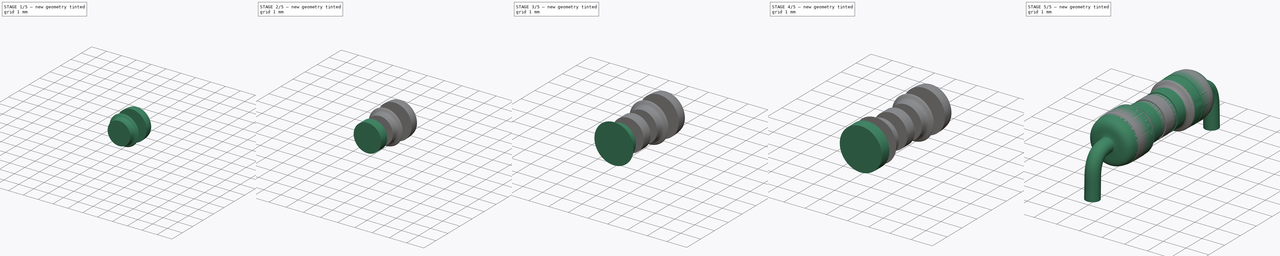
[diagram: build sequence overview — one tinted view per stage of 5, left to right]
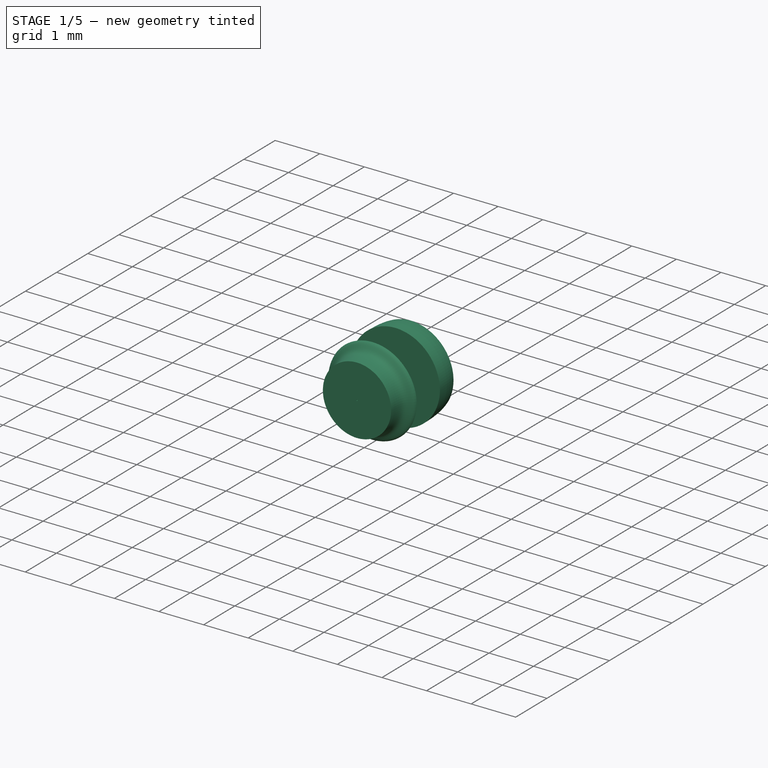
[diagram: stage 1 of 5 — iso view after this stage's code; geometry added in this stage tinted green]
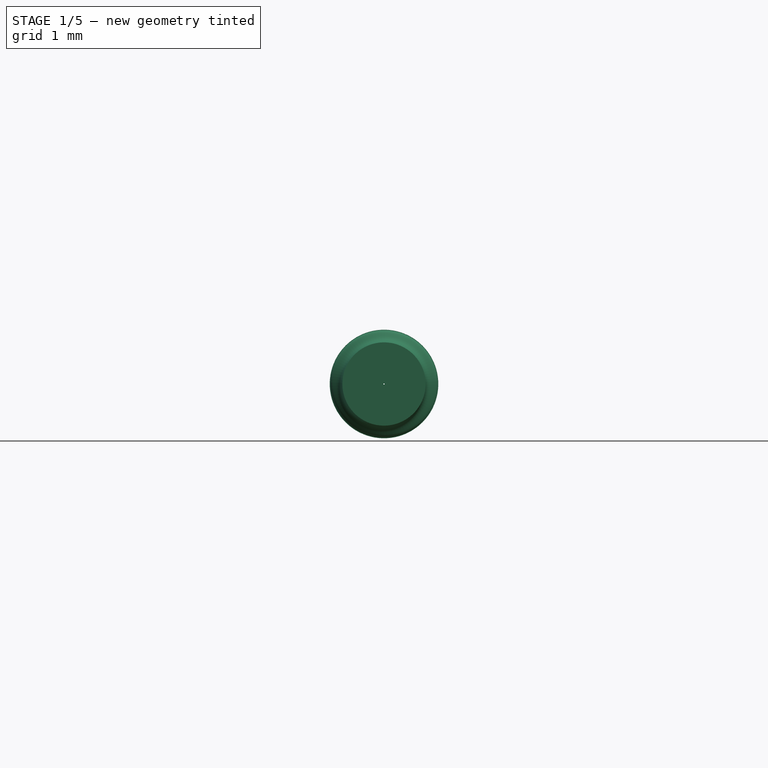
[diagram: stage 1 of 5 — front view after this stage's code; geometry added in this stage tinted green]
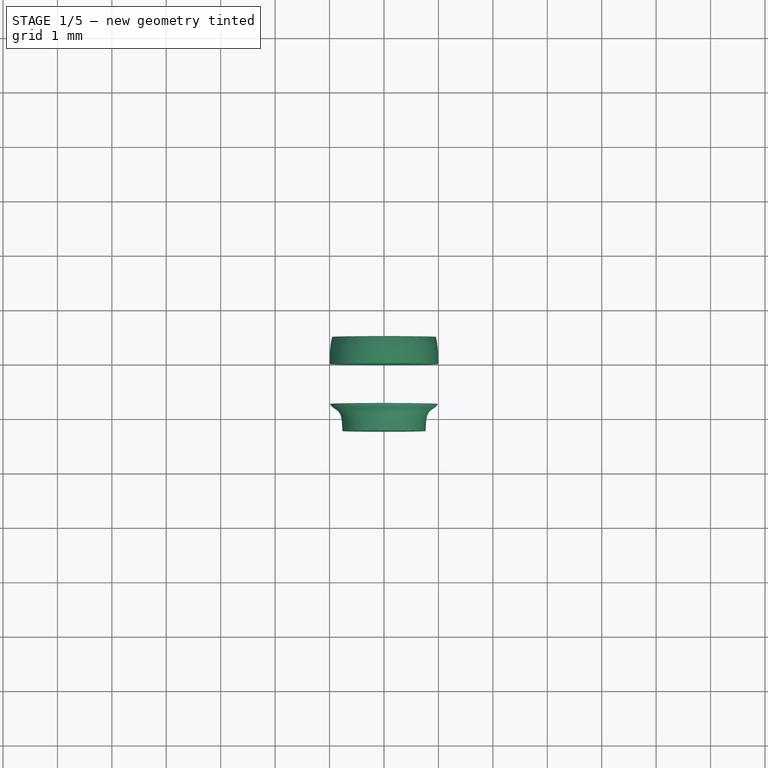
[diagram: stage 1 of 5 — top view after this stage's code; geometry added in this stage tinted green]
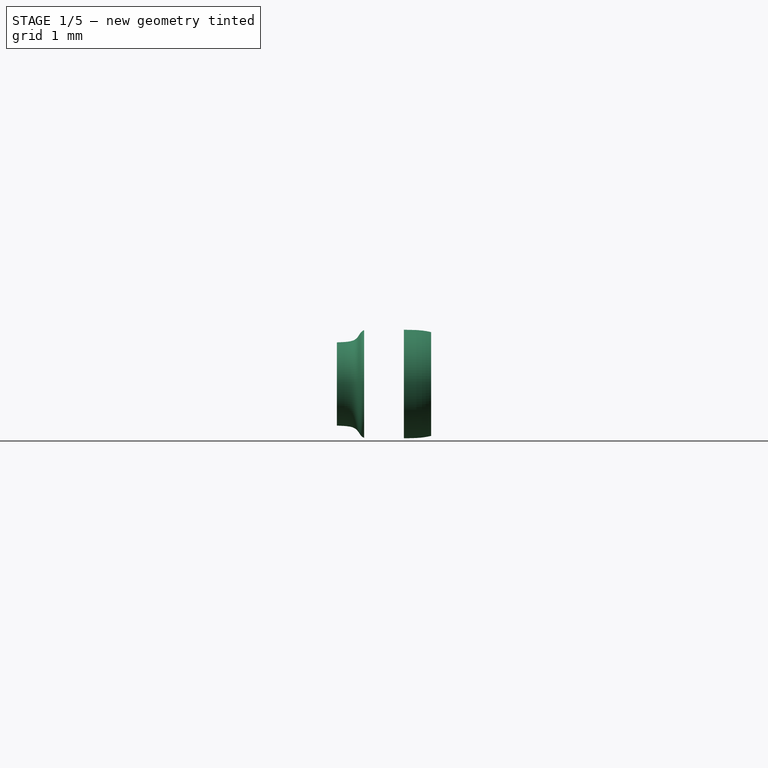
[diagram: stage 1 of 5 — right view after this stage's code; geometry added in this stage tinted green]
FCSTD DOCUMENT  (FreeCAD 0.19R16945 (Git))
Label: Resistors MF ColorCoded
License: All rights reserved
LicenseURL: http://en.wikipedia.org/wiki/All_rights_reserved
objects: PartDesign::Body×49, PartDesign::FeatureBase×37, Sketcher::SketchObject×17, PartDesign::Mirrored×6, PartDesign::Pad×6, PartDesign::Revolution×5, App::DocumentObjectGroup×5, PartDesign::Groove×4, PartDesign::AdditivePipe×1
note: 141 computed .brp shape members not serialized (recipe doc carries the construction recipe); baked Part::Feature solids carry a one-line shape summary decoded from their .brp

FEATURE [PartDesign::Body] Body015  label="2_0"
  Group = -> [Sketch019,Revolution003,Mirrored005,Sketch020,Groove001]
  Origin = -> Origin015
  Tip = -> Groove001
FEATURE [Sketcher::SketchObject] Sketch031
  AttachmentOffset = pos=(0,-0.01,0) rot=(0,0,1;3.14159rad)
  MapMode = 5
  Placement = pos=(0,0,-0.01) rot=(0.57735,-0.57735,0.57735;4.18879rad)
  Support = -> [YZ_Plane024]
  sketch-geometry (31):
    g0: LineSegment StartX=0 StartY=0 StartZ=0 EndX=0 EndY=0.75 EndZ=0
    g1-g11: Circle [constr] x11 (B-spline internal-alignment scaffolding for g12; pole/knot coordinates omitted)
    g12: BSplineCurve PolesCount=11 KnotsCount=9 Degree=3 IsPeriodic=0
    g13-g21: GeomPoint [constr] x9 (B-spline internal-alignment scaffolding for g12; pole/knot coordinates omitted)
    g22: LineSegment [constr] StartX=0 StartY=1 StartZ=0 EndX=-3 EndY=1 EndZ=0
    g23: LineSegment StartX=-2.96618 StartY=0.25 StartZ=0 EndX=-2.96618 EndY=0 EndZ=0
    g24: LineSegment StartX=-2.96618 StartY=0 StartZ=0 EndX=0 EndY=0 EndZ=0
    g25: Circle [constr] CenterX=-0.769069 CenterY=0.754505 CenterZ=0 NormalX=0 NormalY=0 NormalZ=1 AngleXU=0 Radius=0.06
    g26: Circle [constr] CenterX=-0.446942 CenterY=0.755366 CenterZ=0 NormalX=0 NormalY=0 NormalZ=1 AngleXU=0 Radius=0.06
    g27: Circle [constr] CenterX=0 CenterY=0.75 CenterZ=0 NormalX=0 NormalY=0 NormalZ=1 AngleXU=0 Radius=0.06
    g28: BSplineCurve PolesCount=3 KnotsCount=2 Degree=2 IsPeriodic=0
    g29: GeomPoint [constr] X=-0.769069 Y=0.754505 Z=0
    g30: GeomPoint [constr] X=0 Y=0.75 Z=0
  constraints (27):
    c: Coincident(g0,g-1)
    c: PointOnObject(g0,g-2)
    c: Radius(g1) = 0.05
    c: Equal(g1, g2-g11) x10
    c: InternalAlignment(g1-g11 -> g12) x11
    c: InternalAlignment(g13-g21 -> g12) x9
    c: DistanceY(g0,g0) = 0.75
    c: PointOnObject(g22,g-2)
    c: Horizontal(g22)
    c: DistanceY(g0,g22) = 1
    c: DistanceY(g0,g12) = 0.25
    c: DistanceX(g22,g22) = 3
    c: Coincident(g23,g12)
    c: Vertical(g23)
    c: Coincident(g23,g24)
    c: Coincident(g24,g0)
    c: Horizontal(g24)
    c: Coincident(g28,g12)
    c: Radius(g25) = 0.06
    c: Equal(g25,g26)
    c: Equal(g25,g27)
    c: Coincident(g28,g0)
    c: InternalAlignment(g25,g28)
    c: InternalAlignment(g26,g28)
    c: InternalAlignment(g27,g28)
    c: InternalAlignment(g29,g28)
    c: InternalAlignment(g30,g28)
FEATURE [PartDesign::Revolution] Revolution006
  Angle = 360
  Axis = (1e-16,1,-1e-16)
  Base = (0,0,0)
  Placement = pos=(0,0,0) rot=(0.57735,0.57735,0.57735;2.0944rad)
  Profile = -> Sketch031
  ReferenceAxis = -> Y_Axis024
  Refine = true
FEATURE [PartDesign::Mirrored] Mirrored009
  BaseFeature = -> Revolution006
  MirrorPlane = -> Sketch031 [V_Axis]
  Originals = -> [Revolution006]
  Placement = pos=(0,0,0) rot=(0.57735,0.57735,0.57735;2.0944rad)
  Refine = true
FEATURE [Sketcher::SketchObject] Sketch032
  MapMode = 5
  Placement = pos=(0,0,0) rot=(0.57735,0.57735,0.57735;2.0944rad)
  Support = -> [YZ_Plane024]
  sketch-geometry (8):
    g0: LineSegment StartX=1.27 StartY=0 StartZ=0 EndX=7.09893 EndY=0 EndZ=0
    g1: LineSegment StartX=7.09893 StartY=0 StartZ=0 EndX=7.09893 EndY=4.64771 EndZ=0
    g2: LineSegment StartX=7.09893 StartY=4.64771 StartZ=0 EndX=1.27 EndY=4.64771 EndZ=0
    g3: LineSegment StartX=1.27 StartY=4.64771 StartZ=0 EndX=1.27 EndY=0 EndZ=0
    g4: LineSegment StartX=0.77 StartY=0 StartZ=0 EndX=-6.63509 EndY=0 EndZ=0
    g5: LineSegment StartX=-6.63509 StartY=0 StartZ=0 EndX=-6.63509 EndY=4.53032 EndZ=0
    g6: LineSegment StartX=-6.63509 StartY=4.53032 StartZ=0 EndX=0.77 EndY=4.53032 EndZ=0
    g7: LineSegment StartX=0.77 StartY=4.53032 StartZ=0 EndX=0.77 EndY=0 EndZ=0
  constraints (20):
    c: Coincident(g0,g1)
    c: Coincident(g1,g2)
    c: Coincident(g2,g3)
    c: Coincident(g3,g0)
    c: Horizontal(g0)
    c: Horizontal(g2)
    c: Vertical(g1)
    c: Vertical(g3)
    c: PointOnObject(g0,g-1)
    c: Coincident(g4,g5)
    c: Coincident(g5,g6)
    c: Coincident(g6,g7)
    c: Coincident(g7,g4)
    c: Horizontal(g4)
    c: Horizontal(g6)
    c: Vertical(g5)
    c: Vertical(g7)
    c: PointOnObject(g4,g-1)
    c: DistanceX(g6,g2) = 0.5
    c: DistanceX(g-1,g6) = 0.77
FEATURE [PartDesign::Groove] Groove003
  Angle = 360
  Axis = (1e-16,1,-1e-16)
  Base = (0,0,0)
  BaseFeature = -> Mirrored009
  Placement = pos=(0,0,0) rot=(0.57735,0.57735,0.57735;2.0944rad)
  Profile = -> Sketch032
  ReferenceAxis = -> Y_Axis024
  Refine = true
  Reversed = true
FEATURE [PartDesign::Body] Body025  label="3_0"
  Group = -> [Sketch033,Pad005]
  Origin = -> Origin025
  Tip = -> Pad005
FEATURE [Sketcher::SketchObject] Sketch042
  AttachmentOffset = pos=(0,-0.01,0) rot=(0,0,1;3.14159rad)
  MapMode = 5
  Placement = pos=(0,0,-0.01) rot=(0.57735,-0.57735,0.57735;4.18879rad)
  Support = -> [YZ_Plane033]
  sketch-geometry (31):
    g0: LineSegment StartX=0 StartY=0 StartZ=0 EndX=0 EndY=0.75 EndZ=0
    g1-g11: Circle [constr] x11 (B-spline internal-alignment scaffolding for g12; pole/knot coordinates omitted)
    g12: BSplineCurve PolesCount=11 KnotsCount=9 Degree=3 IsPeriodic=0
    g13-g21: GeomPoint [constr] x9 (B-spline internal-alignment scaffolding for g12; pole/knot coordinates omitted)
    g22: LineSegment [constr] StartX=0 StartY=1 StartZ=0 EndX=-3 EndY=1 EndZ=0
    g23: LineSegment StartX=-2.96618 StartY=0.25 StartZ=0 EndX=-2.96618 EndY=0 EndZ=0
    g24: LineSegment StartX=-2.96618 StartY=0 StartZ=0 EndX=0 EndY=0 EndZ=0
    g25: Circle [constr] CenterX=-0.769069 CenterY=0.754505 CenterZ=0 NormalX=0 NormalY=0 NormalZ=1 AngleXU=0 Radius=0.06
    g26: Circle [constr] CenterX=-0.446942 CenterY=0.755366 CenterZ=0 NormalX=0 NormalY=0 NormalZ=1 AngleXU=0 Radius=0.06
    g27: Circle [constr] CenterX=0 CenterY=0.75 CenterZ=0 NormalX=0 NormalY=0 NormalZ=1 AngleXU=0 Radius=0.06
    g28: BSplineCurve PolesCount=3 KnotsCount=2 Degree=2 IsPeriodic=0
    g29: GeomPoint [constr] X=-0.769069 Y=0.754505 Z=0
    g30: GeomPoint [constr] X=0 Y=0.75 Z=0
  constraints (27):
    c: Coincident(g0,g-1)
    c: PointOnObject(g0,g-2)
    c: Radius(g1) = 0.03
    c: Equal(g1, g2-g11) x10
    c: InternalAlignment(g1-g11 -> g12) x11
    c: InternalAlignment(g13-g21 -> g12) x9
    c: DistanceY(g0,g0) = 0.75
    c: PointOnObject(g22,g-2)
    c: Horizontal(g22)
    c: DistanceY(g0,g22) = 1
    c: DistanceY(g0,g12) = 0.25
    c: DistanceX(g22,g22) = 3
    c: Coincident(g23,g12)
    c: Vertical(g23)
    c: Coincident(g23,g24)
    c: Coincident(g24,g0)
    c: Horizontal(g24)
    c: Coincident(g28,g12)
    c: Radius(g25) = 0.06
    c: Equal(g25,g26)
    c: Equal(g25,g27)
    c: Coincident(g28,g0)
    c: InternalAlignment(g25,g28)
    c: InternalAlignment(g26,g28)
    c: InternalAlignment(g27,g28)
    c: InternalAlignment(g29,g28)
    c: InternalAlignment(g30,g28)
FEATURE [PartDesign::Revolution] Revolution008
  Angle = 360
  Axis = (1e-16,1,-1e-16)
  Base = (0,0,0)
  Placement = pos=(0,0,0) rot=(0.57735,0.57735,0.57735;2.0944rad)
  Profile = -> Sketch042
  ReferenceAxis = -> Y_Axis033
  Refine = true
FEATURE [PartDesign::Mirrored] Mirrored012
  BaseFeature = -> Revolution008
  MirrorPlane = -> Sketch042 [V_Axis]
  Originals = -> [Revolution008]
  Placement = pos=(0,0,0) rot=(0.57735,0.57735,0.57735;2.0944rad)
  Refine = true
FEATURE [Sketcher::SketchObject] Sketch043
  MapMode = 5
  Placement = pos=(0,0,0) rot=(0.57735,0.57735,0.57735;2.0944rad)
  Support = -> [YZ_Plane033]
  sketch-geometry (8):
    g0: LineSegment StartX=2.5 StartY=0 StartZ=0 EndX=7.7725 EndY=0 EndZ=0
    g1: LineSegment StartX=7.7725 StartY=0 StartZ=0 EndX=7.7725 EndY=4.54278 EndZ=0
    g2: LineSegment StartX=7.7725 StartY=4.54278 StartZ=0 EndX=2.5 EndY=4.54278 EndZ=0
    g3: LineSegment StartX=2.5 StartY=4.54278 StartZ=0 EndX=2.5 EndY=0 EndZ=0
    g4: LineSegment StartX=2 StartY=0 StartZ=0 EndX=-6.63509 EndY=0 EndZ=0
    g5: LineSegment StartX=-6.63509 StartY=0 StartZ=0 EndX=-6.63509 EndY=4.53032 EndZ=0
    g6: LineSegment StartX=-6.63509 StartY=4.53032 StartZ=0 EndX=2 EndY=4.53032 EndZ=0
    g7: LineSegment StartX=2 StartY=4.53032 StartZ=0 EndX=2 EndY=0 EndZ=0
  constraints (20):
    c: Coincident(g0,g1)
    c: Coincident(g1,g2)
    c: Coincident(g2,g3)
    c: Coincident(g3,g0)
    c: Horizontal(g0)
    c: Horizontal(g2)
    c: Vertical(g1)
    c: Vertical(g3)
    c: PointOnObject(g0,g-1)
    c: Coincident(g4,g5)
    c: Coincident(g5,g6)
    c: Coincident(g6,g7)
    c: Coincident(g7,g4)
    c: Horizontal(g4)
    c: Horizontal(g6)
    c: Vertical(g5)
    c: Vertical(g7)
    c: PointOnObject(g4,g-1)
    c: DistanceX(g6,g2) = 0.5
    c: DistanceX(g-1,g6) = 2
FEATURE [PartDesign::Groove] Groove004
  Angle = 360
  Axis = (1e-16,1,-1e-16)
  Base = (0,0,0)
  BaseFeature = -> Mirrored012
  Placement = pos=(0,0,0) rot=(0.57735,0.57735,0.57735;2.0944rad)
  Profile = -> Sketch043
  ReferenceAxis = -> Y_Axis033
  Reversed = true
FEATURE [PartDesign::Body] Body064  label="4_4"
  Group = -> [Clone030]
  Origin = -> Origin064
  Tip = -> Clone030
FEATURE [PartDesign::FeatureBase] Clone031
  BaseFeature = -> Body024
FEATURE [PartDesign::Body] Body065  label="4_5"
  Group = -> [Clone031]
  Origin = -> Origin065
  Tip = -> Clone031
FEATURE [PartDesign::FeatureBase] Clone032
  BaseFeature = -> Body024
FEATURE [PartDesign::Body] Body066  label="4_6"
  Group = -> [Clone032]
  Origin = -> Origin066
  Tip = -> Clone032
FEATURE [PartDesign::FeatureBase] Clone033
  BaseFeature = -> Body024
FEATURE [PartDesign::Body] Body067  label="4_7"
  Group = -> [Clone033]
  Origin = -> Origin067
  Tip = -> Clone033
FEATURE [PartDesign::FeatureBase] Clone034
  BaseFeature = -> Body024
FEATURE [PartDesign::Body] Body068  label="4_8"
  Group = -> [Clone034]
  Origin = -> Origin068
  Tip = -> Clone034
FEATURE [PartDesign::FeatureBase] Clone035
  BaseFeature = -> Body024
FEATURE [PartDesign::Body] Body069  label="4_9"
  Group = -> [Clone035]
  Origin = -> Origin069
  Tip = -> Clone035
FEATURE [App::DocumentObjectGroup] Group003  label="Bands_4"
  Group = -> [Body024,Body061,Body062,Body063,Body064,Body065,Body066,Body067,Body068,Body069]
FEATURE [PartDesign::FeatureBase] Clone036
  BaseFeature = -> Body033
FEATURE [PartDesign::Body] Body070  label="Band_5_Gold_5%"
  Group = -> [Clone036]
  Origin = -> Origin070
  Tip = -> Clone036
FEATURE [App::DocumentObjectGroup] Group004  label="Bands_5"
  Group = -> [Body033,Body070]
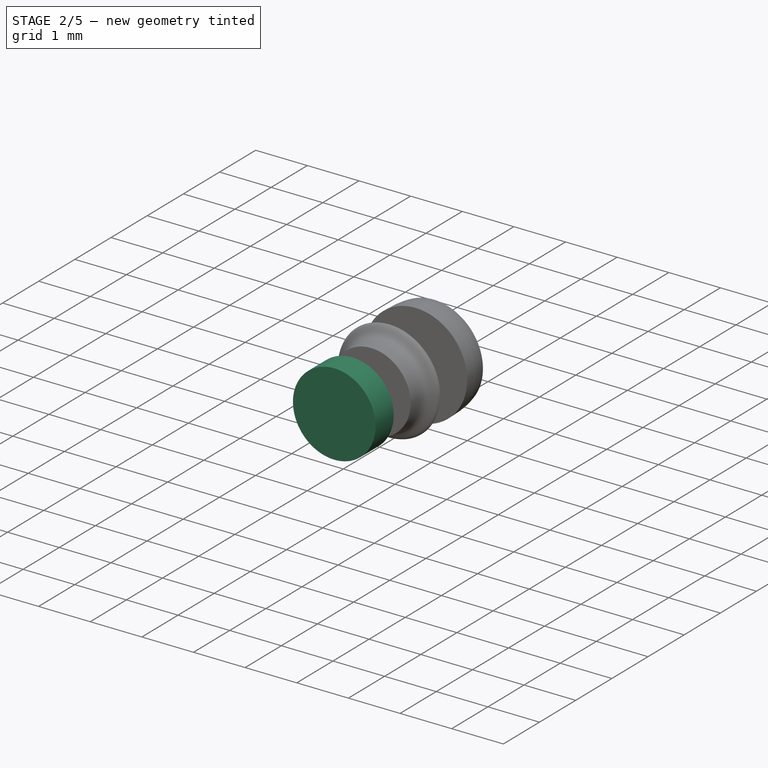
[diagram: stage 2 of 5 — iso view after this stage's code; geometry added in this stage tinted green]
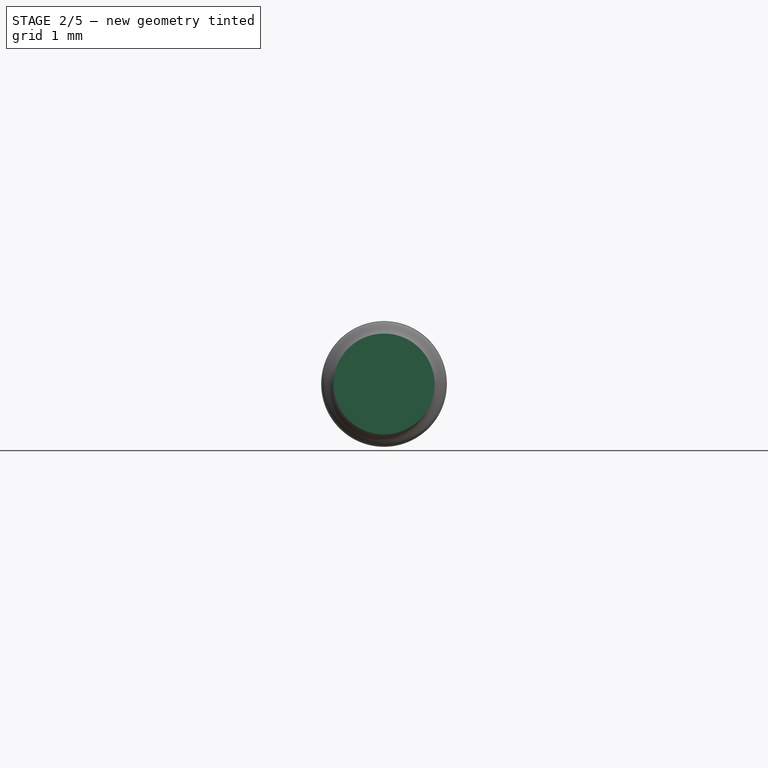
[diagram: stage 2 of 5 — front view after this stage's code; geometry added in this stage tinted green]
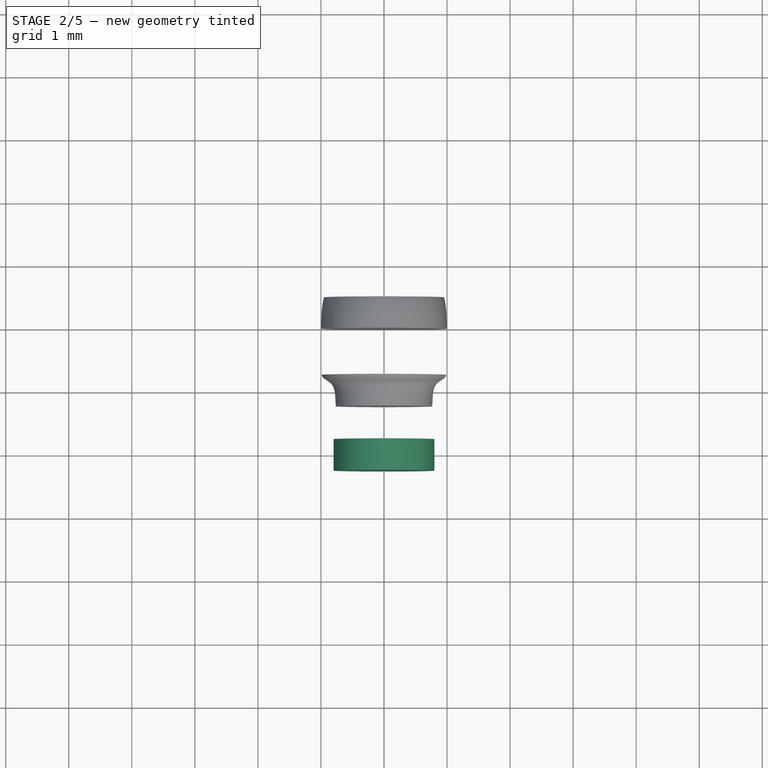
[diagram: stage 2 of 5 — top view after this stage's code; geometry added in this stage tinted green]
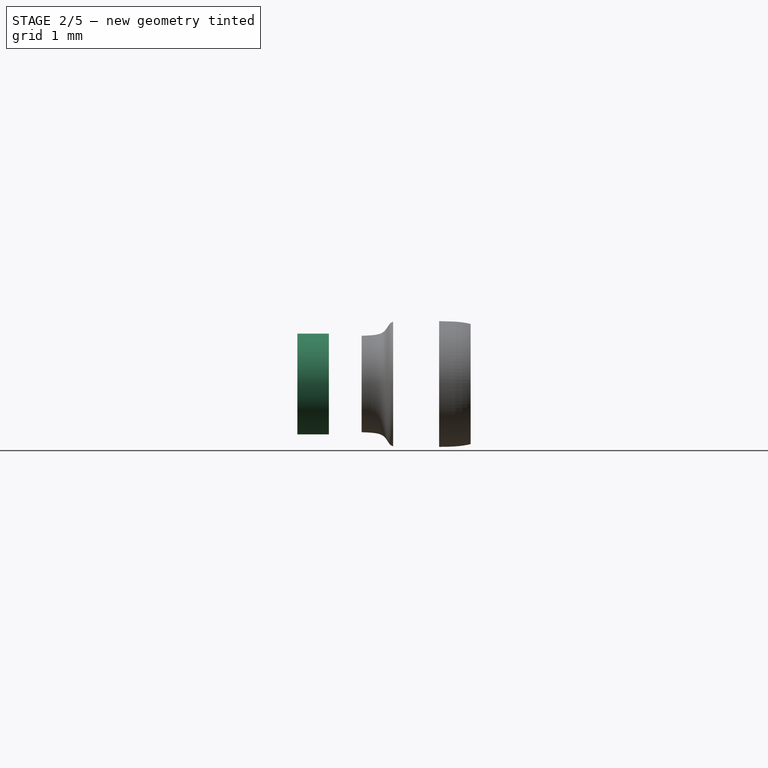
[diagram: stage 2 of 5 — right view after this stage's code; geometry added in this stage tinted green]
FEATURE [PartDesign::Body] Body024  label="4_0"
  Group = -> [Sketch031,Revolution006,Mirrored009,Sketch032,Groove003]
  Origin = -> Origin024
  Tip = -> Groove003
FEATURE [Sketcher::SketchObject] Sketch033
  AttachmentOffset = pos=(0,0,0) rot=(0,0,1;-1.5708rad)
  MapMode = 5
  Placement = pos=(0,0,0) rot=(-0.57735,-0.57735,0.57735;4.18879rad)
  Support = -> [XZ_Plane025]
  sketch-geometry (1):
    g0: Circle CenterX=0 CenterY=0 CenterZ=0 NormalX=0 NormalY=0 NormalZ=1 AngleXU=0 Radius=0.8
  constraints (2):
    c: Coincident(g0,g-1)
    c: Radius(g0) = 0.8
FEATURE [PartDesign::Pad] Pad005
  Length = 0.5
  Length2 = 100
  Midplane = true
  Placement = pos=(0,0,0) rot=(1,0,0;1.5708rad)
  Profile = -> Sketch033
  Type = 0
FEATURE [PartDesign::Body] Body053  label="3_2"
  Group = -> [Clone019]
  Origin = -> Origin053
  Tip = -> Clone019
FEATURE [PartDesign::FeatureBase] Clone020
  BaseFeature = -> Body025
FEATURE [PartDesign::Body] Body054  label="3_3"
  Group = -> [Clone020]
  Origin = -> Origin054
  Tip = -> Clone020
FEATURE [PartDesign::FeatureBase] Clone021
  BaseFeature = -> Body025
FEATURE [PartDesign::Body] Body055  label="3_4"
  Group = -> [Clone021]
  Origin = -> Origin055
  Tip = -> Clone021
FEATURE [PartDesign::FeatureBase] Clone022
  BaseFeature = -> Body025
FEATURE [PartDesign::Body] Body056  label="3_5"
  Group = -> [Clone022]
  Origin = -> Origin056
  Tip = -> Clone022
FEATURE [PartDesign::FeatureBase] Clone023
  BaseFeature = -> Body025
FEATURE [PartDesign::Body] Body057  label="3_6"
  Group = -> [Clone023]
  Origin = -> Origin057
  Tip = -> Clone023
FEATURE [PartDesign::FeatureBase] Clone024
  BaseFeature = -> Body025
FEATURE [PartDesign::Body] Body058  label="3_7"
  Group = -> [Clone024]
  Origin = -> Origin058
  Tip = -> Clone024
FEATURE [PartDesign::FeatureBase] Clone025
  BaseFeature = -> Body025
FEATURE [PartDesign::Body] Body059  label="3_8"
  Group = -> [Clone025]
  Origin = -> Origin059
  Tip = -> Clone025
FEATURE [PartDesign::FeatureBase] Clone026
  BaseFeature = -> Body025
FEATURE [PartDesign::Body] Body060  label="3_9"
  Group = -> [Clone026]
  Origin = -> Origin060
  Tip = -> Clone026
FEATURE [App::DocumentObjectGroup] Group002  label="Bands_3"
  Group = -> [Body025,Body052,Body053,Body054,Body055,Body056,Body057,Body058,Body059,Body060]
FEATURE [PartDesign::FeatureBase] Clone027
  BaseFeature = -> Body024
FEATURE [PartDesign::Body] Body061  label="4_1"
  Group = -> [Clone027]
  Origin = -> Origin061
  Tip = -> Clone027
FEATURE [PartDesign::FeatureBase] Clone028
  BaseFeature = -> Body024
FEATURE [PartDesign::Body] Body062  label="4_2"
  Group = -> [Clone028]
  Origin = -> Origin062
  Tip = -> Clone028
FEATURE [PartDesign::FeatureBase] Clone029
  BaseFeature = -> Body024
FEATURE [PartDesign::Body] Body063  label="4_3"
  Group = -> [Clone029]
  Origin = -> Origin063
  Tip = -> Clone029
FEATURE [PartDesign::FeatureBase] Clone030
  BaseFeature = -> Body024
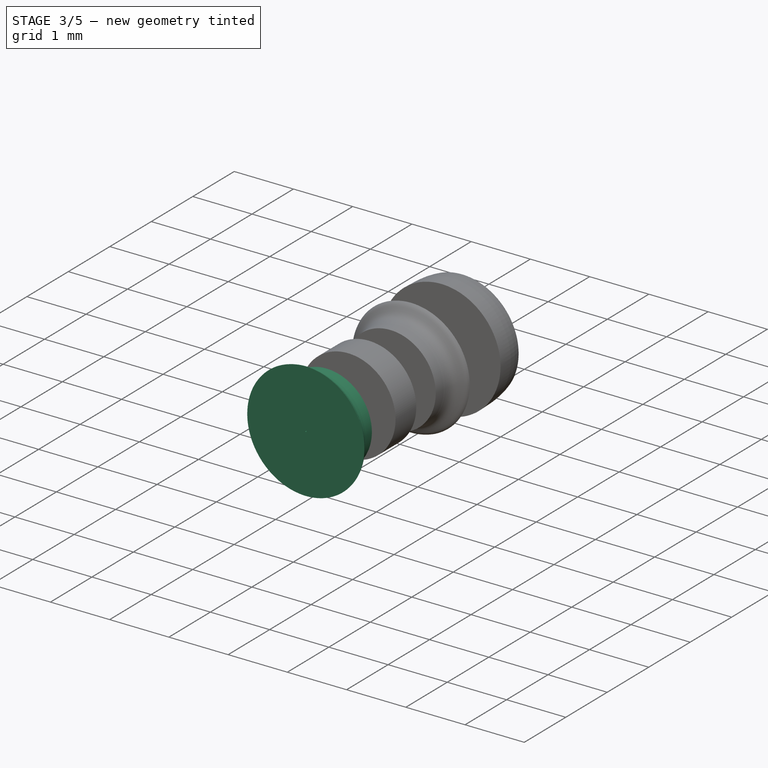
[diagram: stage 3 of 5 — iso view after this stage's code; geometry added in this stage tinted green]
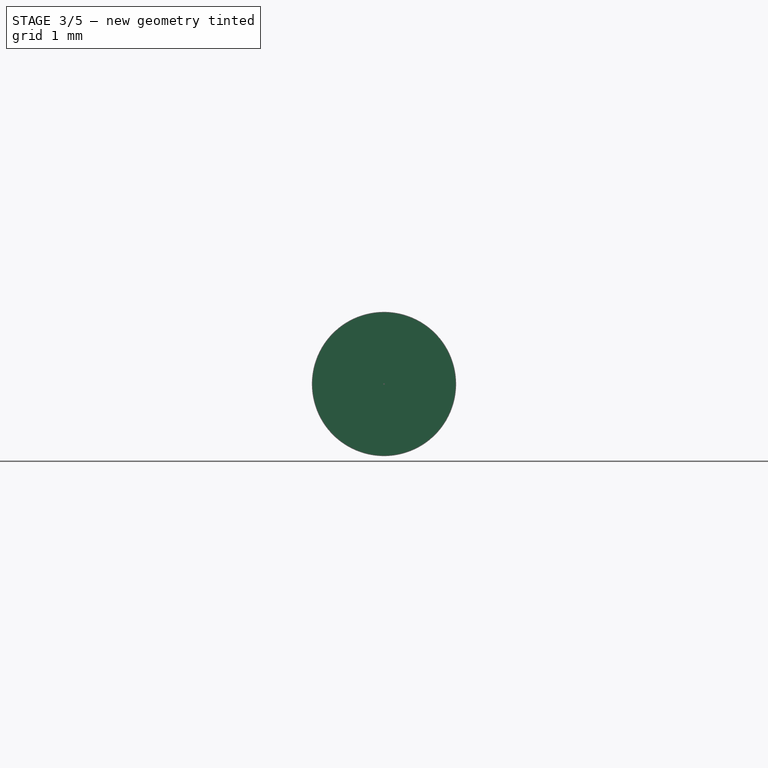
[diagram: stage 3 of 5 — front view after this stage's code; geometry added in this stage tinted green]
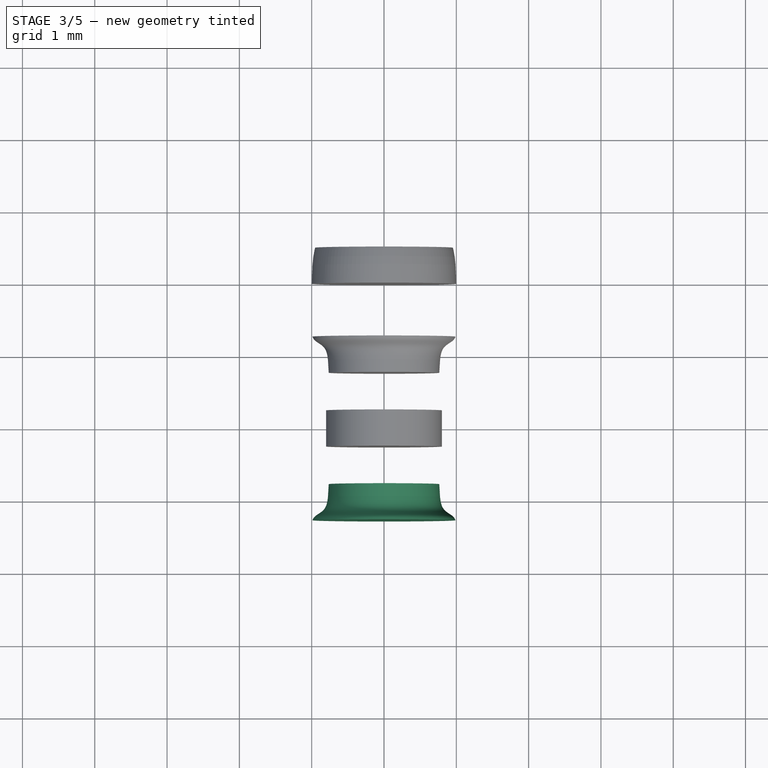
[diagram: stage 3 of 5 — top view after this stage's code; geometry added in this stage tinted green]
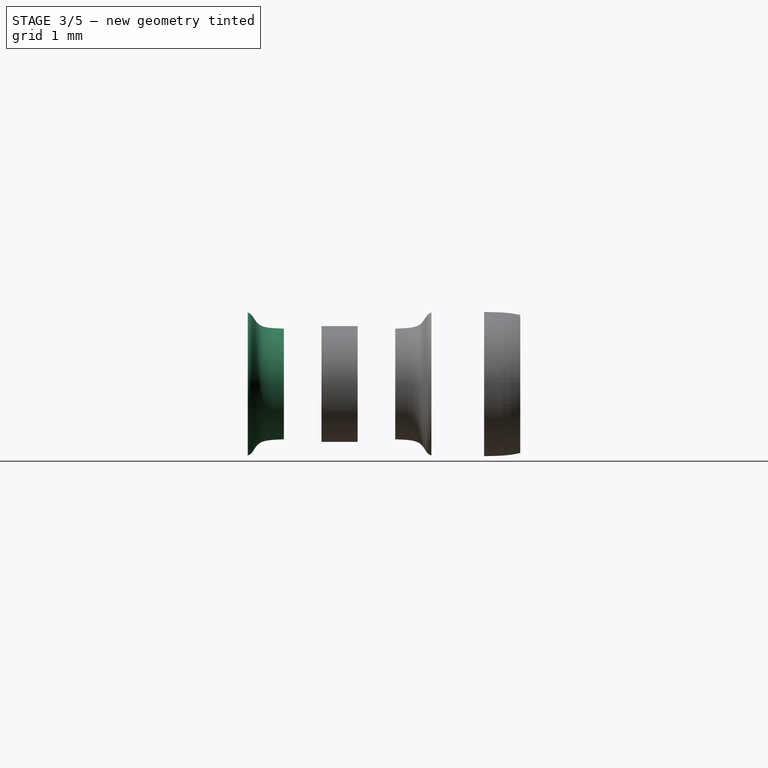
[diagram: stage 3 of 5 — right view after this stage's code; geometry added in this stage tinted green]
FEATURE [PartDesign::Body] Body007  label="1_0"
  Group = -> [Sketch009,Revolution001,Mirrored002,Sketch010,Groove]
  Origin = -> Origin007
  Tip = -> Groove
FEATURE [Sketcher::SketchObject] Sketch019
  AttachmentOffset = pos=(0,-0.01,0) rot=(0,0,1;3.14159rad)
  MapMode = 5
  Placement = pos=(0,0,-0.01) rot=(0.57735,-0.57735,0.57735;4.18879rad)
  Support = -> [YZ_Plane015]
  sketch-geometry (31):
    g0: LineSegment StartX=0 StartY=0 StartZ=0 EndX=0 EndY=0.75 EndZ=0
    g1-g11: Circle [constr] x11 (B-spline internal-alignment scaffolding for g12; pole/knot coordinates omitted)
    g12: BSplineCurve PolesCount=11 KnotsCount=9 Degree=3 IsPeriodic=0
    g13-g21: GeomPoint [constr] x9 (B-spline internal-alignment scaffolding for g12; pole/knot coordinates omitted)
    g22: LineSegment [constr] StartX=0 StartY=1 StartZ=0 EndX=-3 EndY=1 EndZ=0
    g23: LineSegment StartX=-2.96618 StartY=0.25 StartZ=0 EndX=-2.96618 EndY=0 EndZ=0
    g24: LineSegment StartX=-2.96618 StartY=0 StartZ=0 EndX=0 EndY=0 EndZ=0
    g25: Circle [constr] CenterX=-0.769069 CenterY=0.754505 CenterZ=0 NormalX=0 NormalY=0 NormalZ=1 AngleXU=0 Radius=0.06
    g26: Circle [constr] CenterX=-0.446942 CenterY=0.755366 CenterZ=0 NormalX=0 NormalY=0 NormalZ=1 AngleXU=0 Radius=0.06
    g27: Circle [constr] CenterX=0 CenterY=0.75 CenterZ=0 NormalX=0 NormalY=0 NormalZ=1 AngleXU=0 Radius=0.06
    g28: BSplineCurve PolesCount=3 KnotsCount=2 Degree=2 IsPeriodic=0
    g29: GeomPoint [constr] X=-0.769069 Y=0.754505 Z=0
    g30: GeomPoint [constr] X=0 Y=0.75 Z=0
  constraints (27):
    c: Coincident(g0,g-1)
    c: PointOnObject(g0,g-2)
    c: Radius(g1) = 0.05
    c: Equal(g1, g2-g11) x10
    c: InternalAlignment(g1-g11 -> g12) x11
    c: InternalAlignment(g13-g21 -> g12) x9
    c: DistanceY(g0,g0) = 0.75
    c: PointOnObject(g22,g-2)
    c: Horizontal(g22)
    c: DistanceY(g0,g22) = 1
    c: DistanceY(g0,g12) = 0.25
    c: DistanceX(g22,g22) = 3
    c: Coincident(g23,g12)
    c: Vertical(g23)
    c: Coincident(g23,g24)
    c: Coincident(g24,g0)
    c: Horizontal(g24)
    c: Coincident(g28,g12)
    c: Radius(g25) = 0.06
    c: Equal(g25,g26)
    c: Equal(g25,g27)
    c: Coincident(g28,g0)
    c: InternalAlignment(g25,g28)
    c: InternalAlignment(g26,g28)
    c: InternalAlignment(g27,g28)
    c: InternalAlignment(g29,g28)
    c: InternalAlignment(g30,g28)
FEATURE [PartDesign::Revolution] Revolution003
  Angle = 360
  Axis = (1e-16,1,-1e-16)
  Base = (0,0,0)
  Placement = pos=(0,0,0) rot=(0.57735,0.57735,0.57735;2.0944rad)
  Profile = -> Sketch019
  ReferenceAxis = -> Y_Axis015
  Refine = true
FEATURE [PartDesign::Mirrored] Mirrored005
  BaseFeature = -> Revolution003
  MirrorPlane = -> Sketch019 [V_Axis]
  Originals = -> [Revolution003]
  Placement = pos=(0,0,0) rot=(0.57735,0.57735,0.57735;2.0944rad)
  Refine = true
FEATURE [Sketcher::SketchObject] Sketch020
  MapMode = 5
  Placement = pos=(0,0,0) rot=(0.57735,0.57735,0.57735;2.0944rad)
  Support = -> [YZ_Plane015]
  sketch-geometry (8):
    g0: LineSegment StartX=-0.77 StartY=0 StartZ=0 EndX=4.82166 EndY=0 EndZ=0
    g1: LineSegment StartX=4.82166 StartY=0 StartZ=0 EndX=4.82166 EndY=4.48337 EndZ=0
    g2: LineSegment StartX=4.82166 StartY=4.48337 StartZ=0 EndX=-0.77 EndY=4.48337 EndZ=0
    g3: LineSegment StartX=-0.77 StartY=4.48337 StartZ=0 EndX=-0.77 EndY=0 EndZ=0
    g4: LineSegment StartX=-1.27 StartY=0 StartZ=0 EndX=-6.63509 EndY=0 EndZ=0
    g5: LineSegment StartX=-6.63509 StartY=0 StartZ=0 EndX=-6.63509 EndY=4.53032 EndZ=0
    g6: LineSegment StartX=-6.63509 StartY=4.53032 StartZ=0 EndX=-1.27 EndY=4.53032 EndZ=0
    g7: LineSegment StartX=-1.27 StartY=4.53032 StartZ=0 EndX=-1.27 EndY=0 EndZ=0
  constraints (20):
    c: Coincident(g0,g1)
    c: Coincident(g1,g2)
    c: Coincident(g2,g3)
    c: Coincident(g3,g0)
    c: Horizontal(g0)
    c: Horizontal(g2)
    c: Vertical(g1)
    c: Vertical(g3)
    c: PointOnObject(g0,g-1)
    c: DistanceX(g2,g-1) = 0.77
    c: Coincident(g4,g5)
    c: Coincident(g5,g6)
    c: Coincident(g6,g7)
    c: Coincident(g7,g4)
    c: Horizontal(g4)
    c: Horizontal(g6)
    c: Vertical(g5)
    c: Vertical(g7)
    c: PointOnObject(g4,g-1)
    c: DistanceX(g6,g2) = 0.5
FEATURE [PartDesign::Groove] Groove001
  Angle = 360
  Axis = (1e-16,1,-1e-16)
  Base = (0,0,0)
  BaseFeature = -> Mirrored005
  Placement = pos=(0,0,0) rot=(0.57735,0.57735,0.57735;2.0944rad)
  Profile = -> Sketch020
  ReferenceAxis = -> Y_Axis015
  Reversed = true
FEATURE [PartDesign::Body] Body045  label="2_3"
  Group = -> [Clone011]
  Origin = -> Origin045
  Tip = -> Clone011
FEATURE [PartDesign::FeatureBase] Clone012
  BaseFeature = -> Body015
FEATURE [PartDesign::Body] Body046  label="2_4"
  Group = -> [Clone012]
  Origin = -> Origin046
  Tip = -> Clone012
FEATURE [PartDesign::FeatureBase] Clone013
  BaseFeature = -> Body015
FEATURE [PartDesign::Body] Body047  label="2_5"
  Group = -> [Clone013]
  Origin = -> Origin047
  Tip = -> Clone013
FEATURE [PartDesign::FeatureBase] Clone014
  BaseFeature = -> Body015
FEATURE [PartDesign::Body] Body048  label="2_6"
  Group = -> [Clone014]
  Origin = -> Origin048
  Tip = -> Clone014
FEATURE [PartDesign::FeatureBase] Clone015
  BaseFeature = -> Body015
FEATURE [PartDesign::Body] Body049  label="2_7"
  Group = -> [Clone015]
  Origin = -> Origin049
  Tip = -> Clone015
FEATURE [PartDesign::FeatureBase] Clone016
  BaseFeature = -> Body015
FEATURE [PartDesign::Body] Body050  label="2_8"
  Group = -> [Clone016]
  Origin = -> Origin050
  Tip = -> Clone016
FEATURE [PartDesign::FeatureBase] Clone017
  BaseFeature = -> Body015
FEATURE [PartDesign::Body] Body051  label="2_9"
  Group = -> [Clone017]
  Origin = -> Origin051
  Tip = -> Clone017
FEATURE [App::DocumentObjectGroup] Group001  label="Bands_2"
  Group = -> [Body015,Body043,Body044,Body045,Body046,Body047,Body048,Body049,Body050,Body051]
FEATURE [PartDesign::FeatureBase] Clone018
  BaseFeature = -> Body025
FEATURE [PartDesign::Body] Body052  label="3_1"
  Group = -> [Clone018]
  Origin = -> Origin052
  Tip = -> Clone018
FEATURE [PartDesign::FeatureBase] Clone019
  BaseFeature = -> Body025
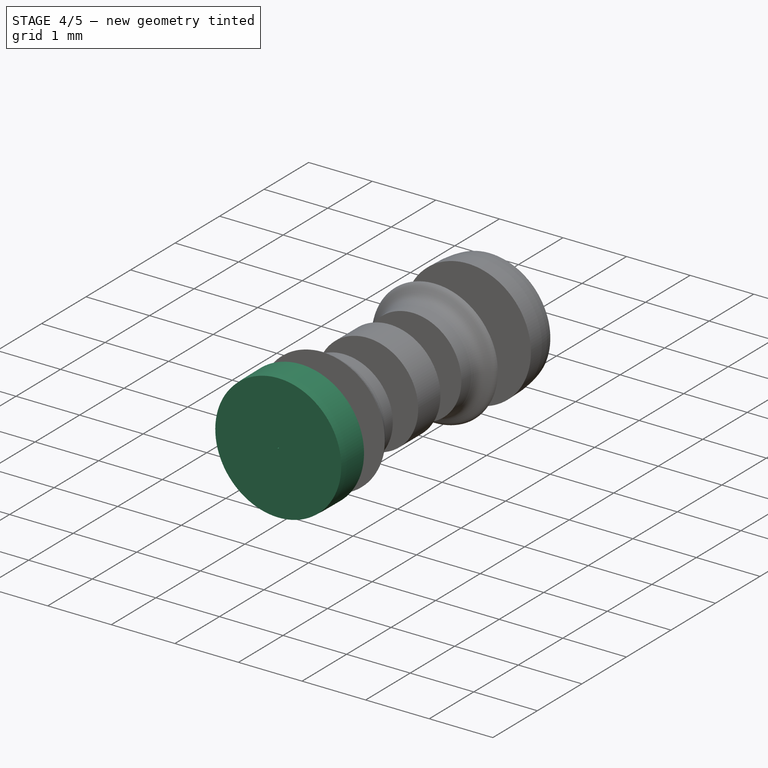
[diagram: stage 4 of 5 — iso view after this stage's code; geometry added in this stage tinted green]
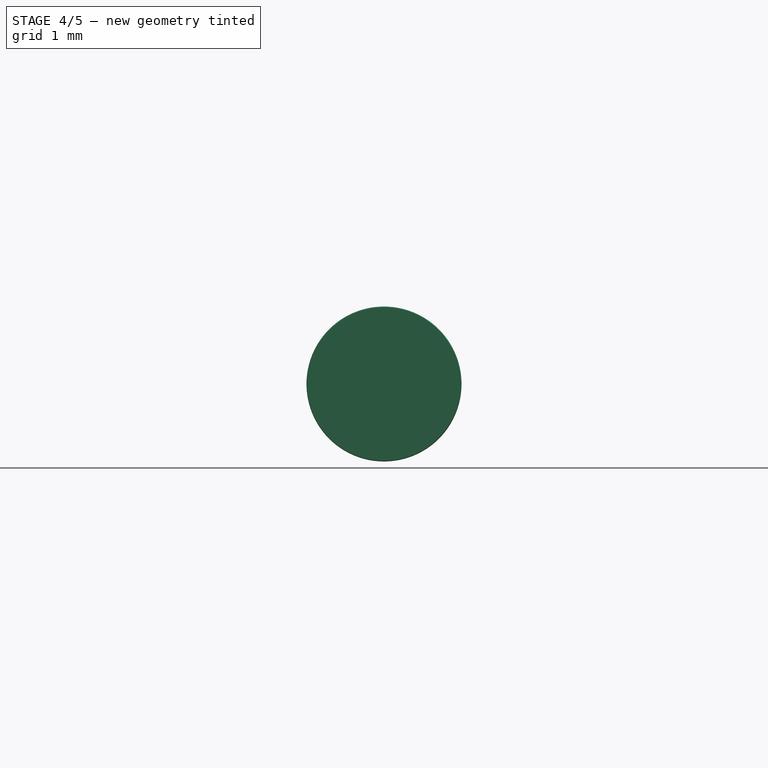
[diagram: stage 4 of 5 — front view after this stage's code; geometry added in this stage tinted green]
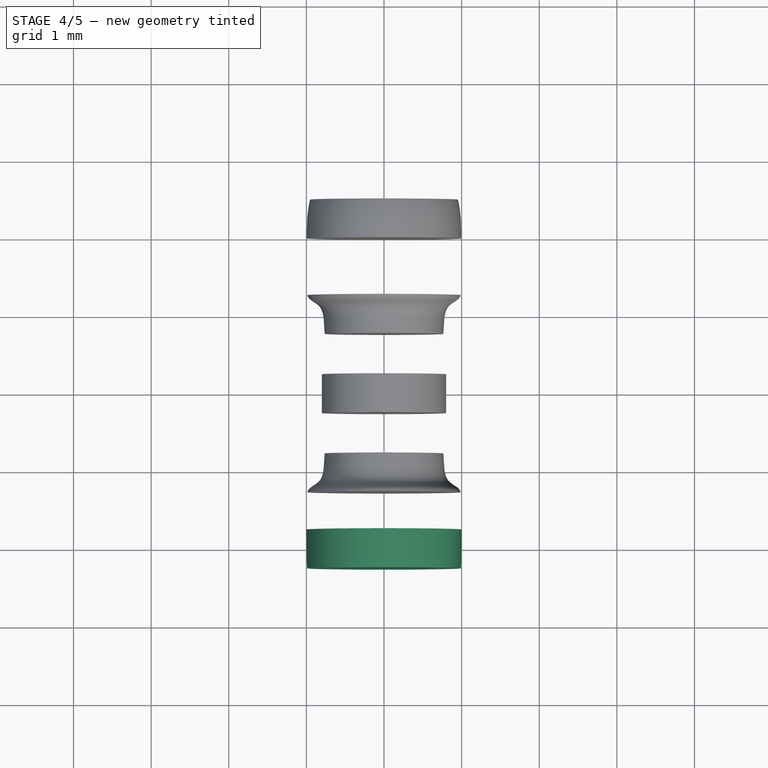
[diagram: stage 4 of 5 — top view after this stage's code; geometry added in this stage tinted green]
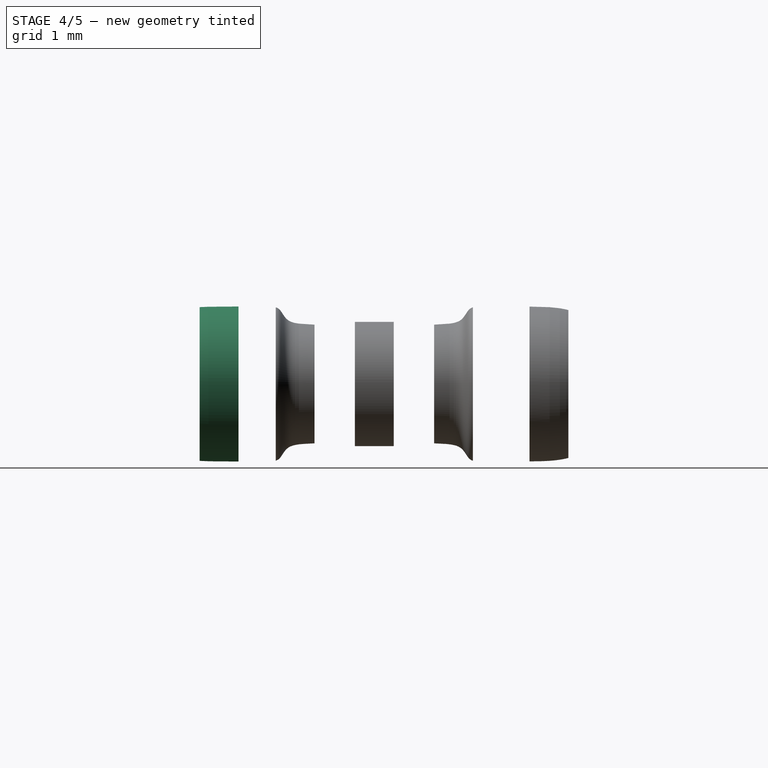
[diagram: stage 4 of 5 — right view after this stage's code; geometry added in this stage tinted green]
FEATURE [PartDesign::Body] Body001  label="Leads"
  Group = -> [Sketch002,Sketch008,AdditivePipe,Mirrored001]
  Origin = -> Origin001
  Tip = -> Mirrored001
FEATURE [Sketcher::SketchObject] Sketch009
  AttachmentOffset = pos=(0,-0.01,0) rot=(0,0,1;3.14159rad)
  MapMode = 5
  Placement = pos=(0,0,-0.01) rot=(0.57735,-0.57735,0.57735;4.18879rad)
  Support = -> [YZ_Plane007]
  sketch-geometry (31):
    g0: LineSegment StartX=0 StartY=0 StartZ=0 EndX=0 EndY=0.75 EndZ=0
    g1-g11: Circle [constr] x11 (B-spline internal-alignment scaffolding for g12; pole/knot coordinates omitted)
    g12: BSplineCurve PolesCount=11 KnotsCount=9 Degree=3 IsPeriodic=0
    g13-g21: GeomPoint [constr] x9 (B-spline internal-alignment scaffolding for g12; pole/knot coordinates omitted)
    g22: LineSegment [constr] StartX=0 StartY=1 StartZ=0 EndX=-3 EndY=1 EndZ=0
    g23: LineSegment StartX=-2.96618 StartY=0.25 StartZ=0 EndX=-2.96618 EndY=0 EndZ=0
    g24: LineSegment StartX=-2.96618 StartY=0 StartZ=0 EndX=0 EndY=0 EndZ=0
    g25: Circle [constr] CenterX=-0.769069 CenterY=0.754505 CenterZ=0 NormalX=0 NormalY=0 NormalZ=1 AngleXU=0 Radius=0.06
    g26: Circle [constr] CenterX=-0.446942 CenterY=0.755366 CenterZ=0 NormalX=0 NormalY=0 NormalZ=1 AngleXU=0 Radius=0.06
    g27: Circle [constr] CenterX=0 CenterY=0.75 CenterZ=0 NormalX=0 NormalY=0 NormalZ=1 AngleXU=0 Radius=0.06
    g28: BSplineCurve PolesCount=3 KnotsCount=2 Degree=2 IsPeriodic=0
    g29: GeomPoint [constr] X=-0.769069 Y=0.754505 Z=0
    g30: GeomPoint [constr] X=0 Y=0.75 Z=0
  constraints (27):
    c: Coincident(g0,g-1)
    c: PointOnObject(g0,g-2)
    c: Radius(g1) = 0.03
    c: Equal(g1, g2-g11) x10
    c: InternalAlignment(g1-g11 -> g12) x11
    c: InternalAlignment(g13-g21 -> g12) x9
    c: DistanceY(g0,g0) = 0.75
    c: PointOnObject(g22,g-2)
    c: Horizontal(g22)
    c: DistanceY(g0,g22) = 1
    c: DistanceY(g0,g12) = 0.25
    c: DistanceX(g22,g22) = 3
    c: Coincident(g23,g12)
    c: Vertical(g23)
    c: Coincident(g23,g24)
    c: Coincident(g24,g0)
    c: Horizontal(g24)
    c: Coincident(g28,g12)
    c: Radius(g25) = 0.06
    c: Equal(g25,g26)
    c: Equal(g25,g27)
    c: Coincident(g28,g0)
    c: InternalAlignment(g25,g28)
    c: InternalAlignment(g26,g28)
    c: InternalAlignment(g27,g28)
    c: InternalAlignment(g29,g28)
    c: InternalAlignment(g30,g28)
FEATURE [PartDesign::Revolution] Revolution001
  Angle = 360
  Axis = (1e-16,1,-1e-16)
  Base = (0,0,0)
  Placement = pos=(0,0,0) rot=(0.57735,0.57735,0.57735;2.0944rad)
  Profile = -> Sketch009
  ReferenceAxis = -> Y_Axis007
  Refine = true
FEATURE [PartDesign::Mirrored] Mirrored002
  BaseFeature = -> Revolution001
  MirrorPlane = -> Sketch009 [V_Axis]
  Originals = -> [Revolution001]
  Placement = pos=(0,0,0) rot=(0.57735,0.57735,0.57735;2.0944rad)
  Refine = true
FEATURE [Sketcher::SketchObject] Sketch010
  MapMode = 5
  Placement = pos=(0,0,0) rot=(0.57735,0.57735,0.57735;2.0944rad)
  Support = -> [YZ_Plane007]
  sketch-geometry (8):
    g0: LineSegment StartX=-1.75 StartY=0 StartZ=0 EndX=4.82166 EndY=0 EndZ=0
    g1: LineSegment StartX=4.82166 StartY=0 StartZ=0 EndX=4.82166 EndY=4.48337 EndZ=0
    g2: LineSegment StartX=4.82166 StartY=4.48337 StartZ=0 EndX=-1.75 EndY=4.48337 EndZ=0
    g3: LineSegment StartX=-1.75 StartY=4.48337 StartZ=0 EndX=-1.75 EndY=0 EndZ=0
    g4: LineSegment StartX=-2.25 StartY=0 StartZ=0 EndX=-6.63509 EndY=0 EndZ=0
    g5: LineSegment StartX=-6.63509 StartY=0 StartZ=0 EndX=-6.63509 EndY=4.53032 EndZ=0
    g6: LineSegment StartX=-6.63509 StartY=4.53032 StartZ=0 EndX=-2.25 EndY=4.53032 EndZ=0
    g7: LineSegment StartX=-2.25 StartY=4.53032 StartZ=0 EndX=-2.25 EndY=0 EndZ=0
  constraints (20):
    c: Coincident(g0,g1)
    c: Coincident(g1,g2)
    c: Coincident(g2,g3)
    c: Coincident(g3,g0)
    c: Horizontal(g0)
    c: Horizontal(g2)
    c: Vertical(g1)
    c: Vertical(g3)
    c: PointOnObject(g0,g-1)
    c: DistanceX(g2,g-1) = 1.75
    c: Coincident(g4,g5)
    c: Coincident(g5,g6)
    c: Coincident(g6,g7)
    c: Coincident(g7,g4)
    c: Horizontal(g4)
    c: Horizontal(g6)
    c: Vertical(g5)
    c: Vertical(g7)
    c: PointOnObject(g4,g-1)
    c: DistanceX(g6,g2) = 0.5
FEATURE [PartDesign::Groove] Groove
  Angle = 360
  Axis = (1e-16,1,-1e-16)
  Base = (0,0,0)
  BaseFeature = -> Mirrored002
  Placement = pos=(0,0,0) rot=(0.57735,0.57735,0.57735;2.0944rad)
  Profile = -> Sketch010
  ReferenceAxis = -> Y_Axis007
  Reversed = true
FEATURE [PartDesign::Body] Body036  label="1_3"
  Group = -> [Clone002]
  Origin = -> Origin036
  Tip = -> Clone002
FEATURE [PartDesign::FeatureBase] Clone003
  BaseFeature = -> Body007
FEATURE [PartDesign::Body] Body037  label="1_4"
  Group = -> [Clone003]
  Origin = -> Origin037
  Tip = -> Clone003
FEATURE [PartDesign::FeatureBase] Clone004
  BaseFeature = -> Body007
FEATURE [PartDesign::Body] Body038  label="1_5"
  Group = -> [Clone004]
  Origin = -> Origin038
  Tip = -> Clone004
FEATURE [PartDesign::FeatureBase] Clone005
  BaseFeature = -> Body007
FEATURE [PartDesign::Body] Body039  label="1_6"
  Group = -> [Clone005]
  Origin = -> Origin039
  Tip = -> Clone005
FEATURE [PartDesign::FeatureBase] Clone006
  BaseFeature = -> Body007
FEATURE [PartDesign::Body] Body040  label="1_7"
  Group = -> [Clone006]
  Origin = -> Origin040
  Tip = -> Clone006
FEATURE [PartDesign::FeatureBase] Clone007
  BaseFeature = -> Body007
FEATURE [PartDesign::Body] Body041  label="1_8"
  Group = -> [Clone007]
  Origin = -> Origin041
  Tip = -> Clone007
FEATURE [PartDesign::FeatureBase] Clone008
  BaseFeature = -> Body007
FEATURE [PartDesign::Body] Body042  label="1_9"
  Group = -> [Clone008]
  Origin = -> Origin042
  Tip = -> Clone008
FEATURE [App::DocumentObjectGroup] Group  label="Bands_1"
  Group = -> [Body007,Body034,Body035,Body036,Body037,Body038,Body039,Body040,Body041,Body042]
FEATURE [PartDesign::FeatureBase] Clone009
  BaseFeature = -> Body015
FEATURE [PartDesign::Body] Body043  label="2_1"
  Group = -> [Clone009]
  Origin = -> Origin043
  Tip = -> Clone009
FEATURE [PartDesign::FeatureBase] Clone010
  BaseFeature = -> Body015
FEATURE [PartDesign::Body] Body044  label="2_2"
  Group = -> [Clone010]
  Origin = -> Origin044
  Tip = -> Clone010
FEATURE [PartDesign::FeatureBase] Clone011
  BaseFeature = -> Body015
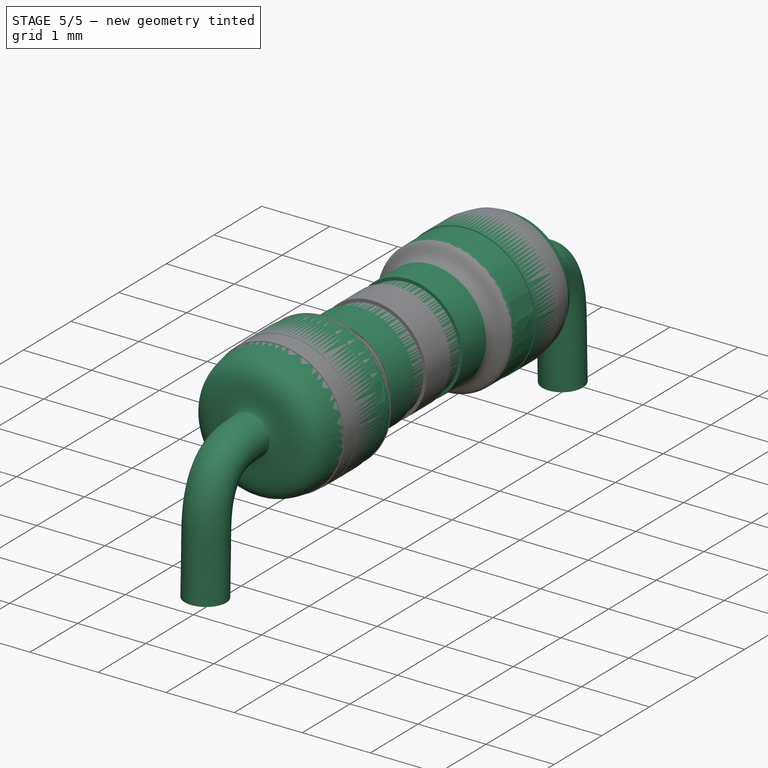
[diagram: stage 5 of 5 — iso view after this stage's code; geometry added in this stage tinted green]
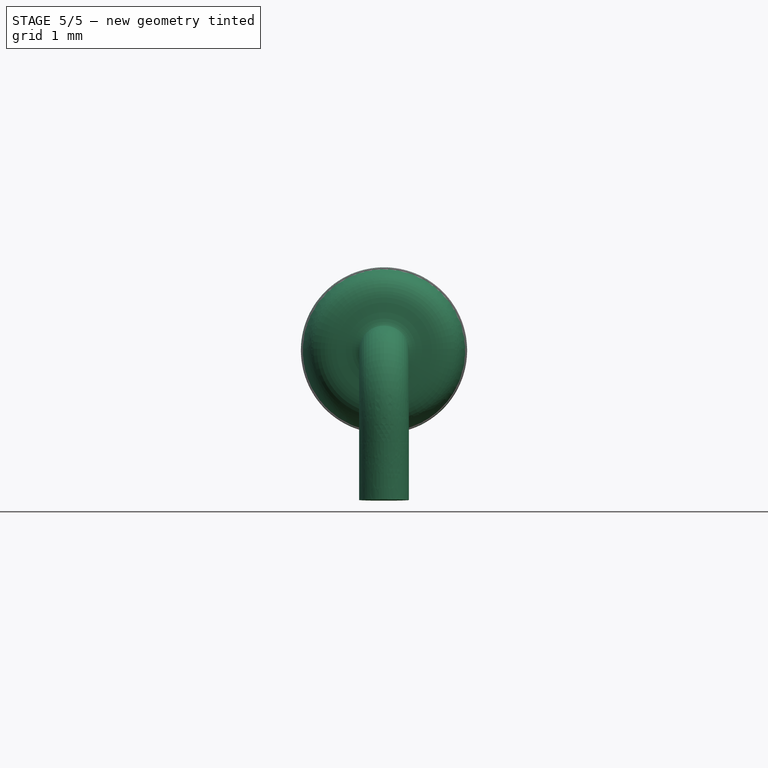
[diagram: stage 5 of 5 — front view after this stage's code; geometry added in this stage tinted green]
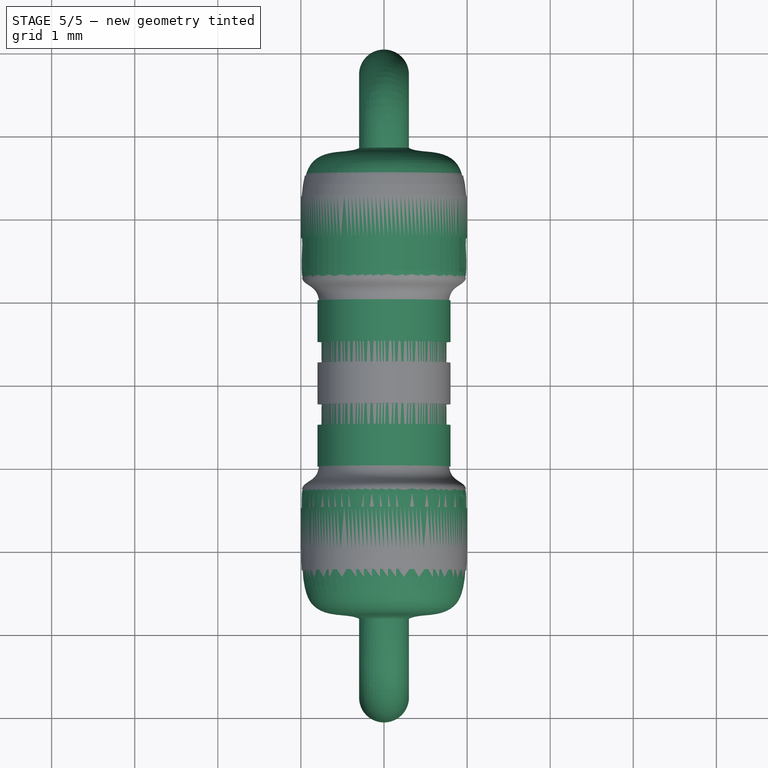
[diagram: stage 5 of 5 — top view after this stage's code; geometry added in this stage tinted green]
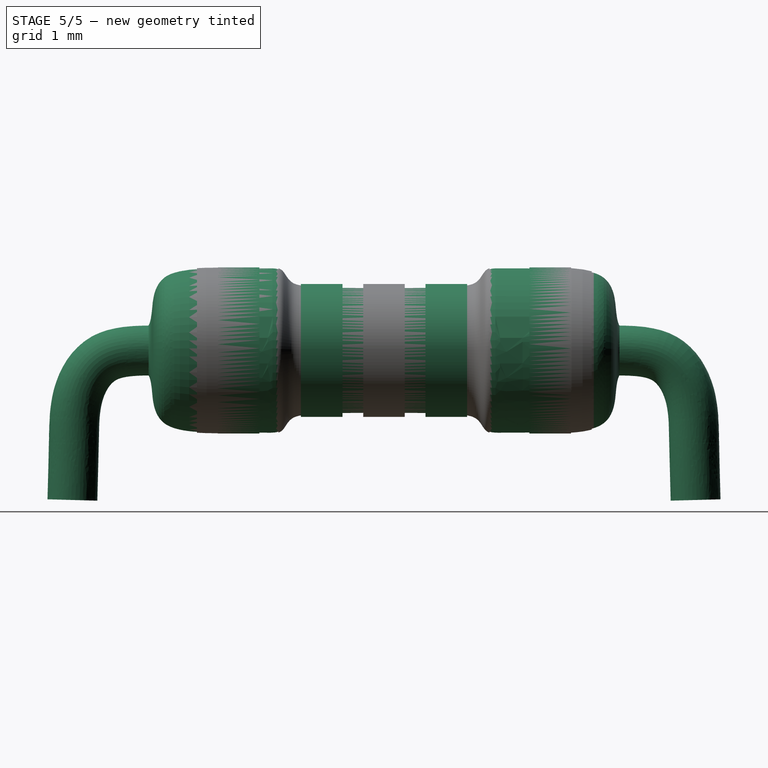
[diagram: stage 5 of 5 — right view after this stage's code; geometry added in this stage tinted green]
FEATURE [Sketcher::SketchObject] Sketch
  AttachmentOffset = pos=(0,0,0) rot=(0,0,1;3.14159rad)
  MapMode = 5
  Placement = pos=(0,0,0) rot=(0.57735,-0.57735,0.57735;4.18879rad)
  Support = -> [YZ_Plane]
  sketch-geometry (31):
    g0: LineSegment StartX=0 StartY=0 StartZ=0 EndX=0 EndY=0.75 EndZ=0
    g1-g11: Circle [constr] x11 (B-spline internal-alignment scaffolding for g12; pole/knot coordinates omitted)
    g12: BSplineCurve PolesCount=11 KnotsCount=9 Degree=3 IsPeriodic=0
    g13-g21: GeomPoint [constr] x9 (B-spline internal-alignment scaffolding for g12; pole/knot coordinates omitted)
    g22: LineSegment [constr] StartX=0 StartY=1 StartZ=0 EndX=-3 EndY=1 EndZ=0
    g23: LineSegment StartX=-2.96618 StartY=0.25 StartZ=0 EndX=-2.96618 EndY=0 EndZ=0
    g24: LineSegment StartX=-2.96618 StartY=0 StartZ=0 EndX=0 EndY=0 EndZ=0
    g25: Circle [constr] CenterX=-0.769069 CenterY=0.754505 CenterZ=0 NormalX=0 NormalY=0 NormalZ=1 AngleXU=0 Radius=0.06
    g26: Circle [constr] CenterX=-0.446942 CenterY=0.755366 CenterZ=0 NormalX=0 NormalY=0 NormalZ=1 AngleXU=0 Radius=0.06
    g27: Circle [constr] CenterX=0 CenterY=0.75 CenterZ=0 NormalX=0 NormalY=0 NormalZ=1 AngleXU=0 Radius=0.06
    g28: BSplineCurve PolesCount=3 KnotsCount=2 Degree=2 IsPeriodic=0
    g29: GeomPoint [constr] X=-0.769069 Y=0.754505 Z=0
    g30: GeomPoint [constr] X=0 Y=0.75 Z=0
  constraints (27):
    c: Coincident(g0,g-1)
    c: PointOnObject(g0,g-2)
    c: Radius(g1) = 0.03
    c: Equal(g1, g2-g11) x10
    c: InternalAlignment(g1-g11 -> g12) x11
    c: InternalAlignment(g13-g21 -> g12) x9
    c: DistanceY(g0,g0) = 0.75
    c: PointOnObject(g22,g-2)
    c: Horizontal(g22)
    c: DistanceY(g0,g22) = 1
    c: DistanceY(g0,g12) = 0.25
    c: DistanceX(g22,g22) = 3
    c: Coincident(g23,g12)
    c: Vertical(g23)
    c: Coincident(g23,g24)
    c: Coincident(g24,g0)
    c: Horizontal(g24)
    c: Coincident(g28,g12)
    c: Radius(g25) = 0.06
    c: Equal(g25,g26)
    c: Equal(g25,g27)
    c: Coincident(g28,g0)
    c: InternalAlignment(g25,g28)
    c: InternalAlignment(g26,g28)
    c: InternalAlignment(g27,g28)
    c: InternalAlignment(g29,g28)
    c: InternalAlignment(g30,g28)
FEATURE [PartDesign::Revolution] Revolution
  Angle = 360
  Axis = (1e-16,1,-1e-16)
  Base = (0,0,0)
  Placement = pos=(0,0,0) rot=(0.57735,0.57735,0.57735;2.0944rad)
  Profile = -> Sketch
  ReferenceAxis = -> Y_Axis
  Refine = true
FEATURE [PartDesign::Mirrored] Mirrored
  BaseFeature = -> Revolution
  MirrorPlane = -> Sketch [V_Axis]
  Originals = -> [Revolution]
  Placement = pos=(0,0,0) rot=(0.57735,0.57735,0.57735;2.0944rad)
  Refine = true
FEATURE [PartDesign::Body] Body
  Group = -> [Sketch,Revolution,Mirrored]
  Origin = -> Origin
  Tip = -> Mirrored
FEATURE [Sketcher::SketchObject] Sketch002
  AttachmentOffset = pos=(0,0,0) rot=(0,0,1;-1.5708rad)
  MapMode = 5
  Placement = pos=(0,0,0) rot=(-0.57735,-0.57735,0.57735;4.18879rad)
  Support = -> [XZ_Plane001]
  sketch-geometry (1):
    g0: Circle CenterX=0 CenterY=0 CenterZ=0 NormalX=0 NormalY=0 NormalZ=1 AngleXU=0 Radius=0.3
  constraints (2):
    c: Coincident(g0,g-1)
    c: Radius(g0) = 0.3
FEATURE [Sketcher::SketchObject] Sketch003
  AttachmentOffset = pos=(0,0,1.75) rot=(0,0,1;-1.5708rad)
  MapMode = 5
  Placement = pos=(0,-1.75,-4e-16) rot=(-0.57735,-0.57735,0.57735;4.18879rad)
  Support = -> [XZ_Plane002]
  sketch-geometry (1):
    g0: Circle CenterX=0 CenterY=0 CenterZ=0 NormalX=0 NormalY=0 NormalZ=1 AngleXU=0 Radius=1
  constraints (2):
    c: Coincident(g0,g-1)
    c: Radius(g0) = 1
FEATURE [PartDesign::Pad] Pad
  Length = 0.5
  Length2 = 100
  Midplane = true
  Placement = pos=(0,0,0) rot=(1,0,0;1.5708rad)
  Profile = -> Sketch003
  Type = 0
FEATURE [PartDesign::Body] Body002  label="Ring_1"
  Group = -> [Sketch003,Pad]
  Origin = -> Origin002
  Tip = -> Pad
FEATURE [Sketcher::SketchObject] Sketch004
  AttachmentOffset = pos=(0,0,0.5) rot=(0,0,1;-1.5708rad)
  MapMode = 5
  Placement = pos=(0,-0.5,-1e-16) rot=(-0.57735,-0.57735,0.57735;4.18879rad)
  Support = -> [XZ_Plane003]
  sketch-geometry (1):
    g0: Circle CenterX=0 CenterY=0 CenterZ=0 NormalX=0 NormalY=0 NormalZ=1 AngleXU=0 Radius=0.8
  constraints (2):
    c: Coincident(g0,g-1)
    c: Radius(g0) = 0.8
FEATURE [PartDesign::Pad] Pad001
  Length = 0.5
  Length2 = 100
  Placement = pos=(0,0,0) rot=(1,0,0;1.5708rad)
  Profile = -> Sketch004
  Type = 0
FEATURE [PartDesign::Body] Body003  label="Ring_2"
  Group = -> [Sketch004,Pad001]
  Origin = -> Origin003
  Tip = -> Pad001
FEATURE [Sketcher::SketchObject] Sketch005
  AttachmentOffset = pos=(0,0,0) rot=(0,0,1;-1.5708rad)
  MapMode = 5
  Placement = pos=(0,0,0) rot=(-0.57735,-0.57735,0.57735;4.18879rad)
  Support = -> [XZ_Plane004]
  sketch-geometry (1):
    g0: Circle CenterX=0 CenterY=0 CenterZ=0 NormalX=0 NormalY=0 NormalZ=1 AngleXU=0 Radius=0.8
  constraints (2):
    c: Coincident(g0,g-1)
    c: Radius(g0) = 0.8
FEATURE [PartDesign::Pad] Pad002
  Length = 0.5
  Length2 = 100
  Midplane = true
  Placement = pos=(0,0,0) rot=(1,0,0;1.5708rad)
  Profile = -> Sketch005
  Type = 0
FEATURE [PartDesign::Body] Body004  label="Ring_3"
  Group = -> [Sketch005,Pad002]
  Origin = -> Origin004
  Tip = -> Pad002
FEATURE [Sketcher::SketchObject] Sketch006
  AttachmentOffset = pos=(0,0,-0.5) rot=(0,0,1;-1.5708rad)
  MapMode = 5
  Placement = pos=(0,0.5,1e-16) rot=(-0.57735,-0.57735,0.57735;4.18879rad)
  Support = -> [XZ_Plane005]
  sketch-geometry (1):
    g0: Circle CenterX=0 CenterY=0 CenterZ=0 NormalX=0 NormalY=0 NormalZ=1 AngleXU=0 Radius=0.8
  constraints (2):
    c: Coincident(g0,g-1)
    c: Radius(g0) = 0.8
FEATURE [PartDesign::Pad] Pad003
  Length = 0.5
  Length2 = 100
  Placement = pos=(0,0,0) rot=(1,0,0;1.5708rad)
  Profile = -> Sketch006
  Reversed = true
  Type = 0
FEATURE [PartDesign::Body] Body005  label="Ring_4"
  Group = -> [Sketch006,Pad003]
  Origin = -> Origin005
  Tip = -> Pad003
FEATURE [Sketcher::SketchObject] Sketch007
  AttachmentOffset = pos=(0,0,-2) rot=(0,0,1;-1.5708rad)
  MapMode = 5
  Placement = pos=(0,2,4e-16) rot=(-0.57735,-0.57735,0.57735;4.18879rad)
  Support = -> [XZ_Plane006]
  sketch-geometry (1):
    g0: Circle CenterX=0 CenterY=0 CenterZ=0 NormalX=0 NormalY=0 NormalZ=1 AngleXU=0 Radius=1
  constraints (2):
    c: Coincident(g0,g-1)
    c: Radius(g0) = 1
FEATURE [PartDesign::Pad] Pad004
  Length = 0.5
  Length2 = 100
  Midplane = true
  Placement = pos=(0,0,0) rot=(1,0,0;1.5708rad)
  Profile = -> Sketch007
  Type = 0
FEATURE [PartDesign::Body] Body006  label="Ring_5_Brown_1%"
  Group = -> [Sketch007,Pad004]
  Origin = -> Origin006
  Tip = -> Pad004
FEATURE [Sketcher::SketchObject] Sketch008
  MapMode = 5
  Placement = pos=(0,0,0) rot=(0.57735,0.57735,0.57735;2.0944rad)
  Support = -> [YZ_Plane001]
  sketch-geometry (15):
    g0: LineSegment StartX=0 StartY=0 StartZ=0 EndX=-2.75 EndY=0 EndZ=0
    g1: LineSegment [constr] StartX=0 StartY=-1.8 StartZ=0 EndX=-3.75 EndY=-1.8 EndZ=0
    g2-g8: Circle [constr] x7 (B-spline internal-alignment scaffolding for g9; pole/knot coordinates omitted)
    g9: BSplineCurve PolesCount=7 KnotsCount=5 Degree=3 IsPeriodic=0
    g10-g14: GeomPoint [constr] x5 (B-spline internal-alignment scaffolding for g9; pole/knot coordinates omitted)
  constraints (15):
    c: Coincident(g0,g-1)
    c: PointOnObject(g0,g-1)
    c: DistanceX(g0,g0) = 2.75
    c: PointOnObject(g1,g-2)
    c: Horizontal(g1)
    c: DistanceY(g1,g0) = 1.8
    c: DistanceX(g1,g1) = 3.75
    c: Coincident(g9,g0)
    c: Radius(g2) = 0.07
    c: Equal(g2,g3)
    c: PointOnObject(g3,g-1)
    c: Equal(g2, g4-g8) x5
    c: Coincident(g9,g1)
    c: InternalAlignment(g2-g8 -> g9) x7
    c: InternalAlignment(g10-g14 -> g9) x5
FEATURE [PartDesign::AdditivePipe] AdditivePipe
  AuxilleryCurvelinear = true
  AuxillerySpineTangent = false
  Binormal = (0,0,0)
  Mode = 0
  Placement = pos=(0,0,0) rot=(1,0,0;1.5708rad)
  Profile = -> Sketch002
  Spine = -> Sketch008
  SpineTangent = false
  Transformation = 0
  Transition = 0
FEATURE [PartDesign::Mirrored] Mirrored001
  BaseFeature = -> AdditivePipe
  MirrorPlane = -> XZ_Plane001
  Originals = -> [AdditivePipe]
  Placement = pos=(0,0,0) rot=(1,0,0;1.5708rad)
FEATURE [PartDesign::Body] Body033  label="Band_5_Brown_1%"
  Group = -> [Sketch042,Revolution008,Mirrored012,Sketch043,Groove004]
  Origin = -> Origin033
  Tip = -> Groove004
FEATURE [PartDesign::FeatureBase] Clone
  BaseFeature = -> Body007
FEATURE [PartDesign::Body] Body034  label="1_1"
  Group = -> [Clone]
  Origin = -> Origin034
  Tip = -> Clone
FEATURE [PartDesign::FeatureBase] Clone001
  BaseFeature = -> Body007
FEATURE [PartDesign::Body] Body035  label="1_2"
  Group = -> [Clone001]
  Origin = -> Origin035
  Tip = -> Clone001
FEATURE [PartDesign::FeatureBase] Clone002
  BaseFeature = -> Body007
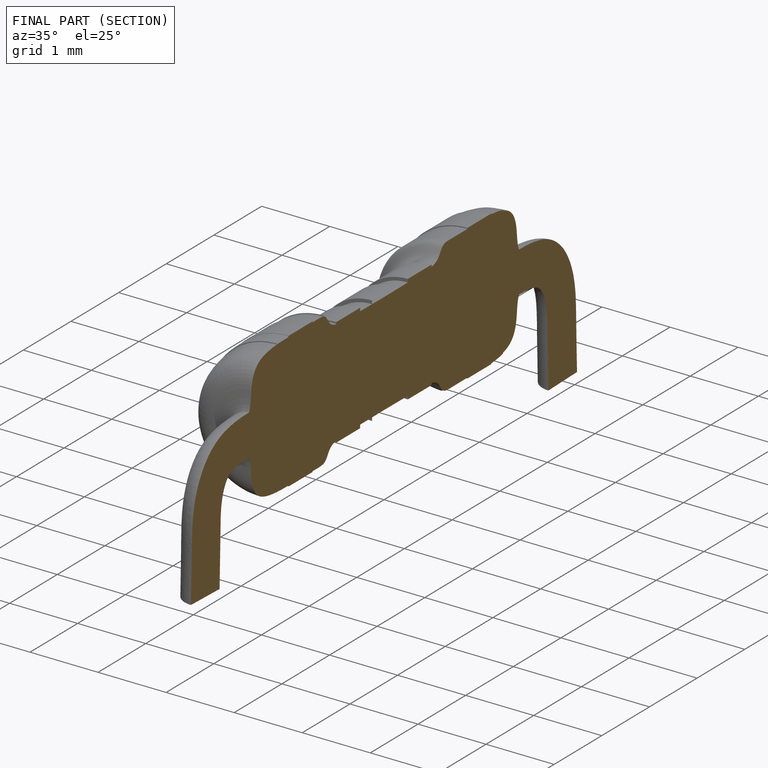
[diagram: finished part — half-section view (interior)]
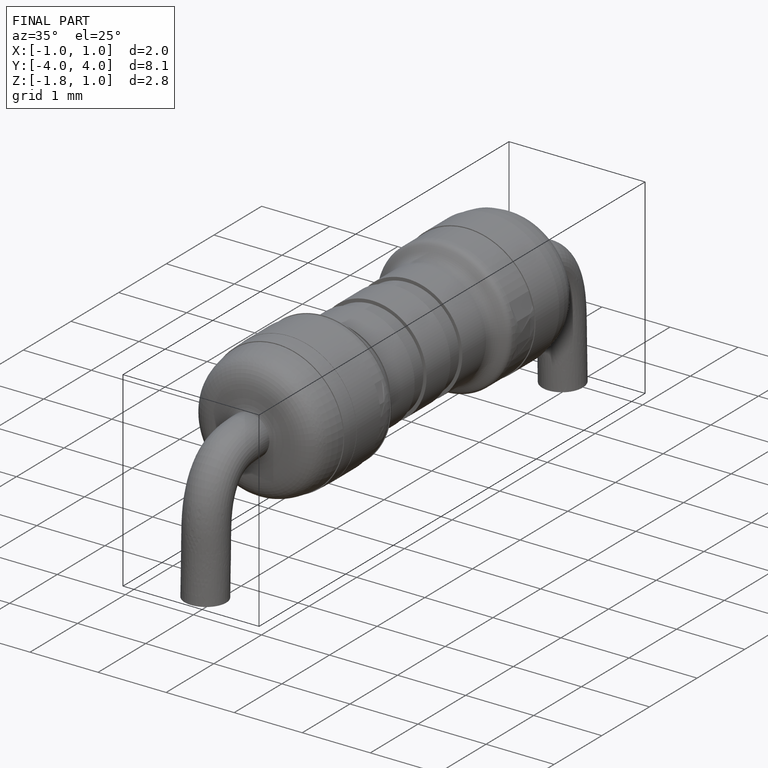
[diagram: finished part — iso view with bounding-box wireframe]
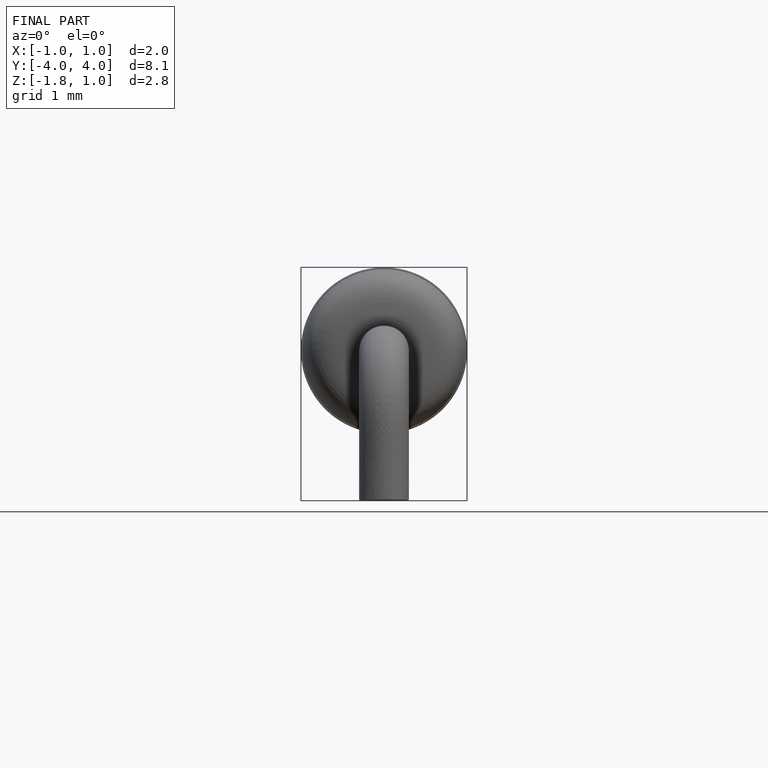
[diagram: finished part — front view with bounding-box wireframe]
